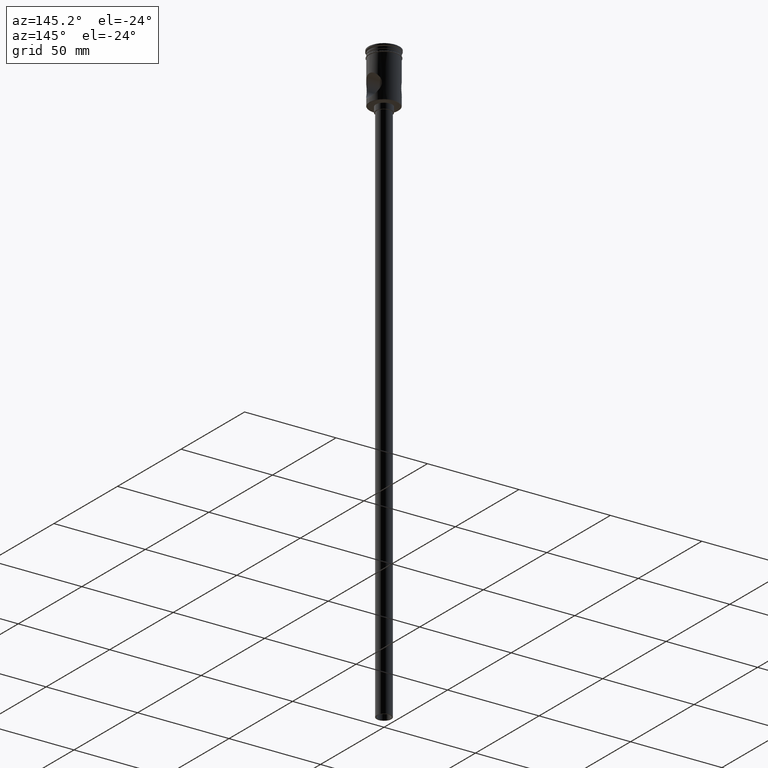
[diagram: clean part render]
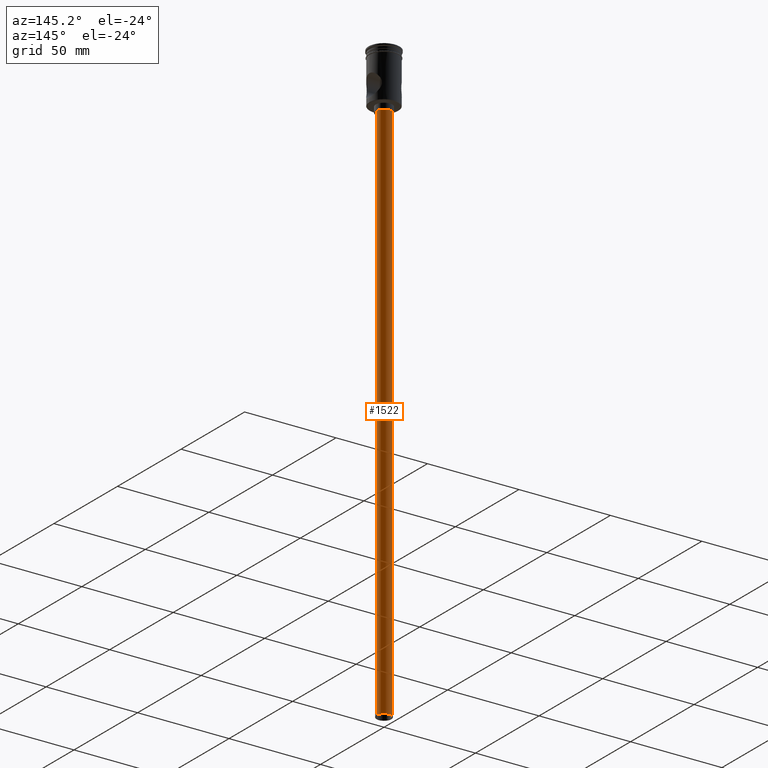
[diagram: same view with one face highlighted and labeled with its STEP entity id]
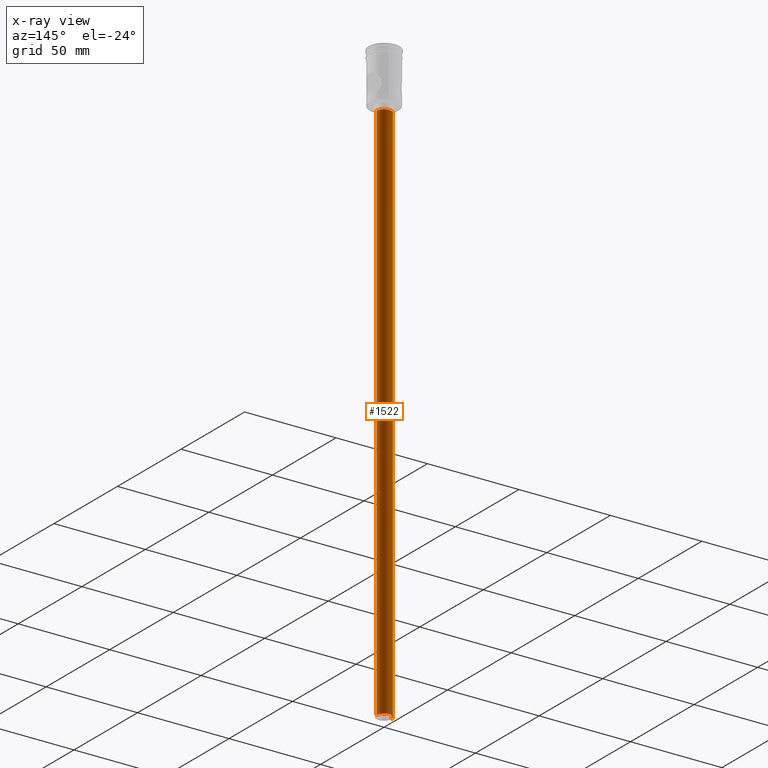
[diagram: x-ray of the same camera — body ghosted, the highlighted face saturated]
A machine part, auxiliary view. The second image highlights one B-rep face of the part: STEP entity #1522.
The next image is the same camera in x-ray: the body ghosted, the highlighted face saturated — about 0% of this face is hidden behind the body in this view.
In plain terms, the highlighted cylindrical surface (edge-blend (fillet) strip) has radius 4 mm, axis along (-0, -0, 1).
Its self-contained STEP definition (entity closure, byte-faithful):
#30 = ORIENTED_EDGE ( 'NONE', *, *, #430, .F. ) ;
#40 = EDGE_CURVE ( 'NONE', #61, #372, #76, .T. ) ;
#61 = VERTEX_POINT ( 'NONE', #957 ) ;
#76 = CIRCLE ( 'NONE', #1087, 4.000000000000000000 ) ;
#79 = AXIS2_PLACEMENT_3D ( 'NONE', #587, #1042, #926 ) ;
#86 = ORIENTED_EDGE ( 'NONE', *, *, #863, .F. ) ;
#110 = EDGE_CURVE ( 'NONE', #721, #61, #1305, .T. ) ;
#166 = LINE ( 'NONE', #741, #683 ) ;
#232 = CARTESIAN_POINT ( 'NONE',  ( 4.000000000000000000, 0.000000000000000000, -327.5000000000000000 ) ) ;
#263 = DIRECTION ( 'NONE',  ( 1.000000000000000000, 0.000000000000000000, 0.000000000000000000 ) ) ;
#306 = FACE_OUTER_BOUND ( 'NONE', #1149, .T. ) ;
#356 = CARTESIAN_POINT ( 'NONE',  ( 0.000000000000000000, 0.000000000000000000, -30.50000000000000000 ) ) ;
#372 = VERTEX_POINT ( 'NONE', #1215 ) ;
#381 = DIRECTION ( 'NONE',  ( -0.000000000000000000, -0.000000000000000000, 1.000000000000000000 ) ) ;
#430 = EDGE_CURVE ( 'NONE', #836, #372, #166, .T. ) ;
#514 = DIRECTION ( 'NONE',  ( -0.000000000000000000, -0.000000000000000000, 1.000000000000000000 ) ) ;
#587 = CARTESIAN_POINT ( 'NONE',  ( 0.000000000000000000, 0.000000000000000000, -327.5000000000000000 ) ) ;
#606 = DIRECTION ( 'NONE',  ( -0.000000000000000000, -0.000000000000000000, 1.000000000000000000 ) ) ;
#645 = CARTESIAN_POINT ( 'NONE',  ( -4.000000000000000000, 4.898587196589412829E-16, -327.5000000000000000 ) ) ;
#683 = VECTOR ( 'NONE', #514, 1000.000000000000000 ) ;
#721 = VERTEX_POINT ( 'NONE', #645 ) ;
#741 = CARTESIAN_POINT ( 'NONE',  ( 4.000000000000000000, 0.000000000000000000, -327.5000000000000000 ) ) ;
#836 = VERTEX_POINT ( 'NONE', #232 ) ;
#863 = EDGE_CURVE ( 'NONE', #721, #836, #1188, .T. ) ;
#926 = DIRECTION ( 'NONE',  ( -1.000000000000000000, 0.000000000000000000, 0.000000000000000000 ) ) ;
#954 = CARTESIAN_POINT ( 'NONE',  ( 0.000000000000000000, 0.000000000000000000, -327.5000000000000000 ) ) ;
#957 = CARTESIAN_POINT ( 'NONE',  ( -4.000000000000000000, 4.898587196589412829E-16, -30.50000000000000000 ) ) ;
#1042 = DIRECTION ( 'NONE',  ( 0.000000000000000000, 0.000000000000000000, -1.000000000000000000 ) ) ;
#1048 = DIRECTION ( 'NONE',  ( 0.000000000000000000, 0.000000000000000000, -1.000000000000000000 ) ) ;
#1087 = AXIS2_PLACEMENT_3D ( 'NONE', #356, #1048, #1401 ) ;
#1149 = EDGE_LOOP ( 'NONE', ( #86, #1249, #1419, #30 ) ) ;
#1169 = CARTESIAN_POINT ( 'NONE',  ( -4.000000000000000000, 4.898587196589412829E-16, -327.5000000000000000 ) ) ;
#1173 = CYLINDRICAL_SURFACE ( 'NONE', #1318, 4.000000000000000000 ) ;
#1188 = CIRCLE ( 'NONE', #79, 4.000000000000000000 ) ;
#1215 = CARTESIAN_POINT ( 'NONE',  ( 4.000000000000000000, 0.000000000000000000, -30.50000000000000000 ) ) ;
#1249 = ORIENTED_EDGE ( 'NONE', *, *, #110, .T. ) ;
#1305 = LINE ( 'NONE', #1169, #1439 ) ;
#1318 = AXIS2_PLACEMENT_3D ( 'NONE', #954, #606, #263 ) ;
#1401 = DIRECTION ( 'NONE',  ( -1.000000000000000000, 0.000000000000000000, 0.000000000000000000 ) ) ;
#1419 = ORIENTED_EDGE ( 'NONE', *, *, #40, .T. ) ;
#1439 = VECTOR ( 'NONE', #381, 1000.000000000000000 ) ;
#1522 = ADVANCED_FACE ( 'NONE', ( #306 ), #1173, .T. ) ;